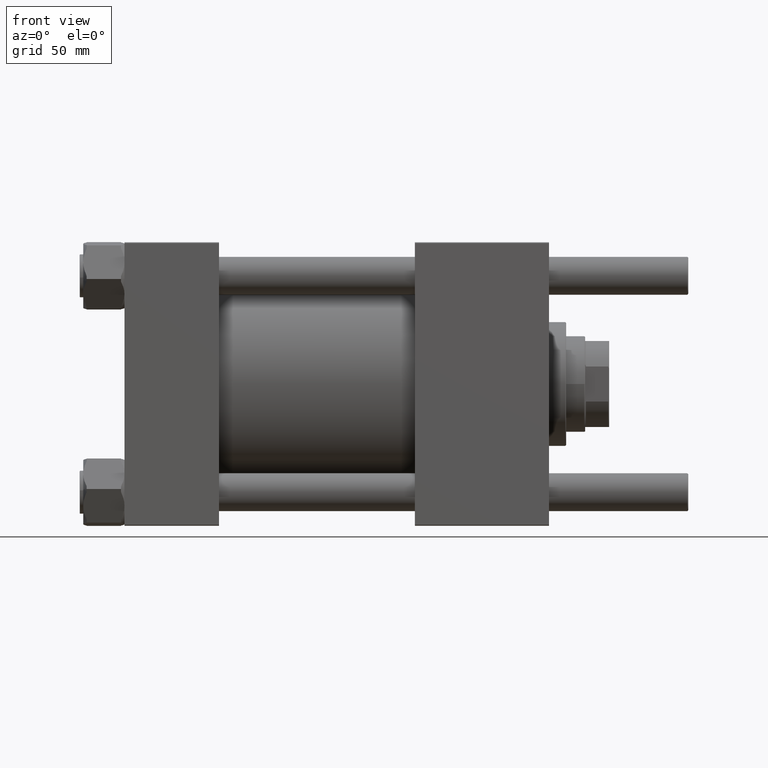
[diagram: clean part render]
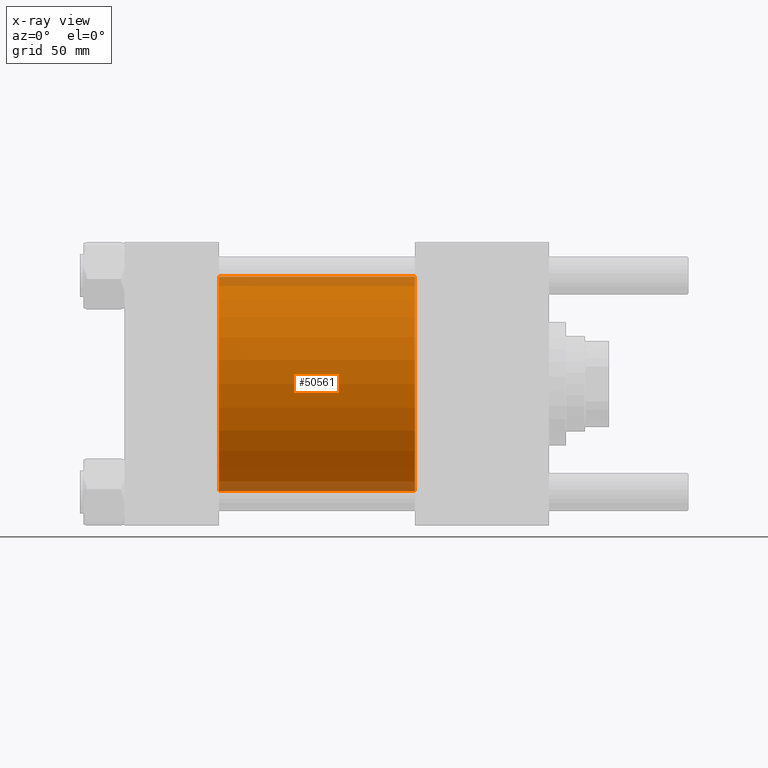
[diagram: x-ray — body ghosted, one internal face saturated and labeled with its STEP entity id]
A machine part, front view, then the same camera in x-ray: the body is ghosted and one INTERNAL B-rep face — a face not visible from any outside direction — is saturated and labeled: STEP entity #50561.
In plain terms, the highlighted cylindrical surface (partial cylindrical patch) has radius 62.5 mm, axis along (-1, -0, -0).
Its self-contained STEP definition (entity closure, byte-faithful):
#3429 = DIRECTION ( 'NONE',  ( -1.000000000000000000, -0.000000000000000000, -0.000000000000000000 ) ) ;
#4620 = VERTEX_POINT ( 'NONE', #55222 ) ;
#6707 = CIRCLE ( 'NONE', #53861, 62.50000000000000000 ) ;
#7316 = LINE ( 'NONE', #51899, #16897 ) ;
#7763 = CYLINDRICAL_SURFACE ( 'NONE', #40270, 62.50000000000000000 ) ;
#11113 = DIRECTION ( 'NONE',  ( -1.000000000000000000, -0.000000000000000000, -0.000000000000000000 ) ) ;
#14469 = EDGE_CURVE ( 'NONE', #18733, #24927, #33095, .T. ) ;
#14650 = EDGE_CURVE ( 'NONE', #4620, #31176, #7316, .T. ) ;
#16882 = DIRECTION ( 'NONE',  ( -1.000000000000000000, -0.000000000000000000, -0.000000000000000000 ) ) ;
#16897 = VECTOR ( 'NONE', #16882, 1000.000000000000000 ) ;
#18224 = EDGE_CURVE ( 'NONE', #4620, #18733, #6707, .T. ) ;
#18733 = VERTEX_POINT ( 'NONE', #49937 ) ;
#19265 = ORIENTED_EDGE ( 'NONE', *, *, #14469, .T. ) ;
#21092 = DIRECTION ( 'NONE',  ( 0.000000000000000000, 0.000000000000000000, 1.000000000000000000 ) ) ;
#21484 = CARTESIAN_POINT ( 'NONE',  ( 55.00000000000000000, 5.051957280705745584E-15, -62.50000000000000000 ) ) ;
#21663 = FACE_OUTER_BOUND ( 'NONE', #50416, .T. ) ;
#22973 = DIRECTION ( 'NONE',  ( 0.000000000000000000, 0.000000000000000000, -1.000000000000000000 ) ) ;
#24927 = VERTEX_POINT ( 'NONE', #21484 ) ;
#25605 = CARTESIAN_POINT ( 'NONE',  ( 55.00000000000000000, -2.602085213965210642E-15, 62.50000000000000000 ) ) ;
#26175 = CARTESIAN_POINT ( 'NONE',  ( 55.00000000000000000, -2.602085213965210642E-15, 0.000000000000000000 ) ) ;
#26750 = DIRECTION ( 'NONE',  ( 1.000000000000000000, 0.000000000000000000, 0.000000000000000000 ) ) ;
#31176 = VERTEX_POINT ( 'NONE', #25605 ) ;
#33095 = LINE ( 'NONE', #41761, #45553 ) ;
#35426 = CIRCLE ( 'NONE', #51101, 62.50000000000000000 ) ;
#36820 = DIRECTION ( 'NONE',  ( 1.000000000000000000, 0.000000000000000000, 0.000000000000000000 ) ) ;
#37030 = EDGE_CURVE ( 'NONE', #31176, #24927, #35426, .T. ) ;
#39297 = CARTESIAN_POINT ( 'NONE',  ( 169.0000000000000000, -2.602085213965210642E-15, 0.000000000000000000 ) ) ;
#40270 = AXIS2_PLACEMENT_3D ( 'NONE', #39297, #3429, #21092 ) ;
#41761 = CARTESIAN_POINT ( 'NONE',  ( 169.0000000000000000, 5.051957280705745584E-15, -62.50000000000000000 ) ) ;
#43806 = DIRECTION ( 'NONE',  ( 0.000000000000000000, 0.000000000000000000, -1.000000000000000000 ) ) ;
#45553 = VECTOR ( 'NONE', #11113, 1000.000000000000000 ) ;
#48629 = ORIENTED_EDGE ( 'NONE', *, *, #37030, .F. ) ;
#49135 = ORIENTED_EDGE ( 'NONE', *, *, #14650, .F. ) ;
#49861 = CARTESIAN_POINT ( 'NONE',  ( 169.0000000000000000, -2.602085213965210642E-15, 0.000000000000000000 ) ) ;
#49937 = CARTESIAN_POINT ( 'NONE',  ( 169.0000000000000000, 5.051957280705745584E-15, -62.50000000000000000 ) ) ;
#50416 = EDGE_LOOP ( 'NONE', ( #52355, #19265, #48629, #49135 ) ) ;
#50561 = ADVANCED_FACE ( 'NONE', ( #21663 ), #7763, .F. ) ;
#51101 = AXIS2_PLACEMENT_3D ( 'NONE', #26175, #26750, #43806 ) ;
#51899 = CARTESIAN_POINT ( 'NONE',  ( 169.0000000000000000, -2.602085213965210642E-15, 62.50000000000000000 ) ) ;
#52355 = ORIENTED_EDGE ( 'NONE', *, *, #18224, .T. ) ;
#53861 = AXIS2_PLACEMENT_3D ( 'NONE', #49861, #36820, #22973 ) ;
#55222 = CARTESIAN_POINT ( 'NONE',  ( 169.0000000000000000, -2.602085213965210642E-15, 62.50000000000000000 ) ) ;